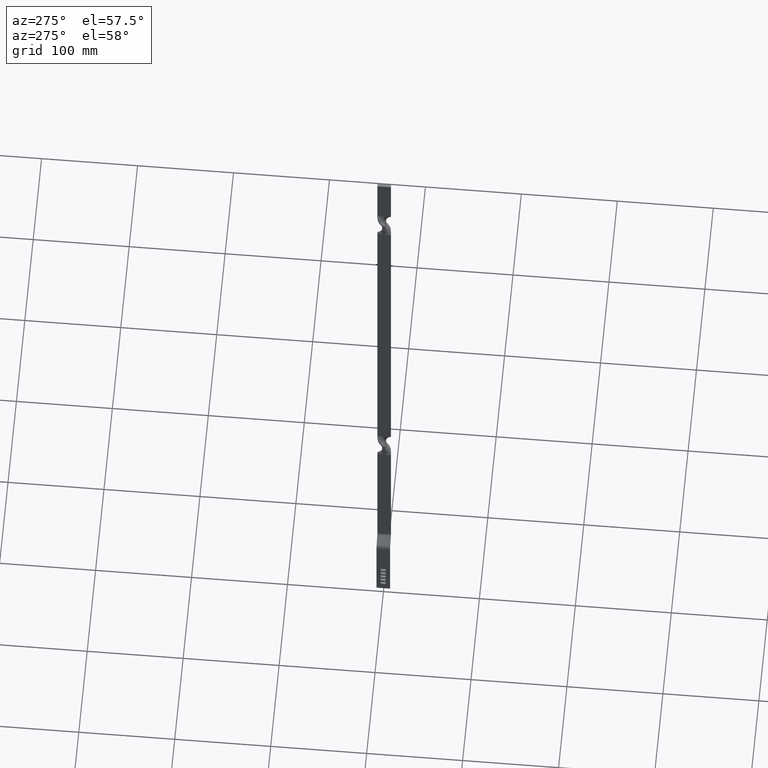
[diagram: clean part render]
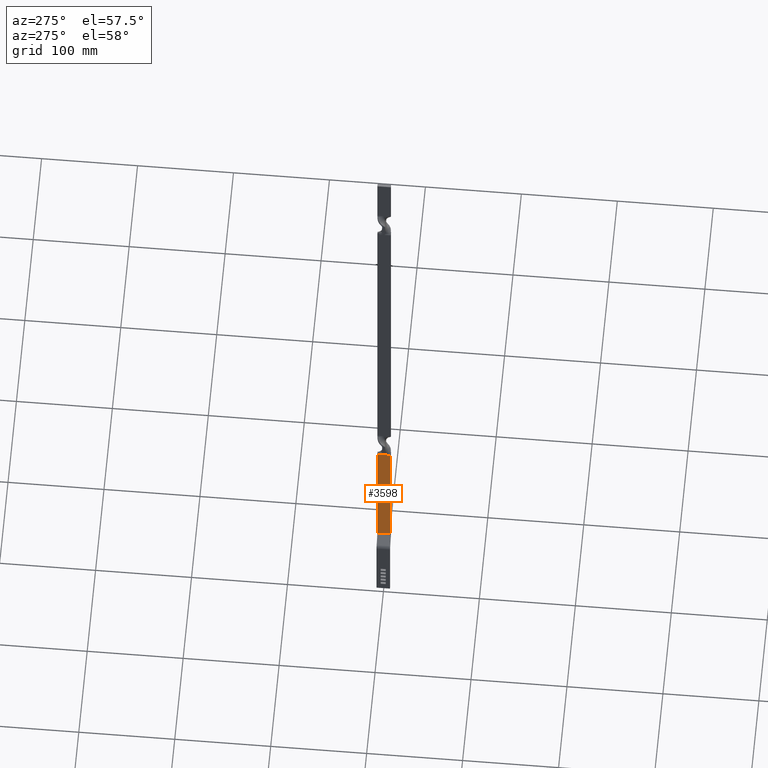
[diagram: same view with one face highlighted and labeled with its STEP entity id]
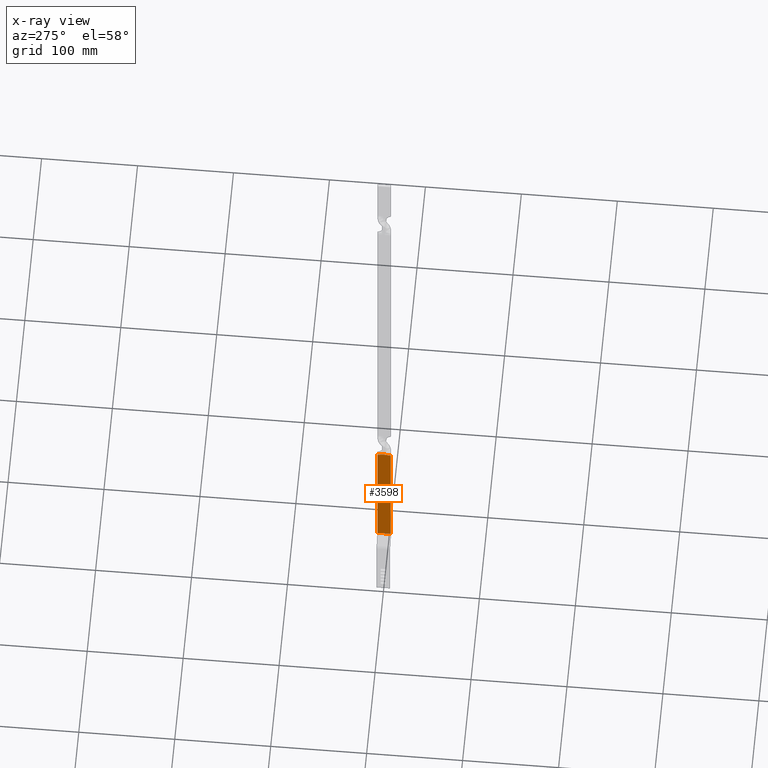
[diagram: x-ray of the same camera — body ghosted, the highlighted face saturated]
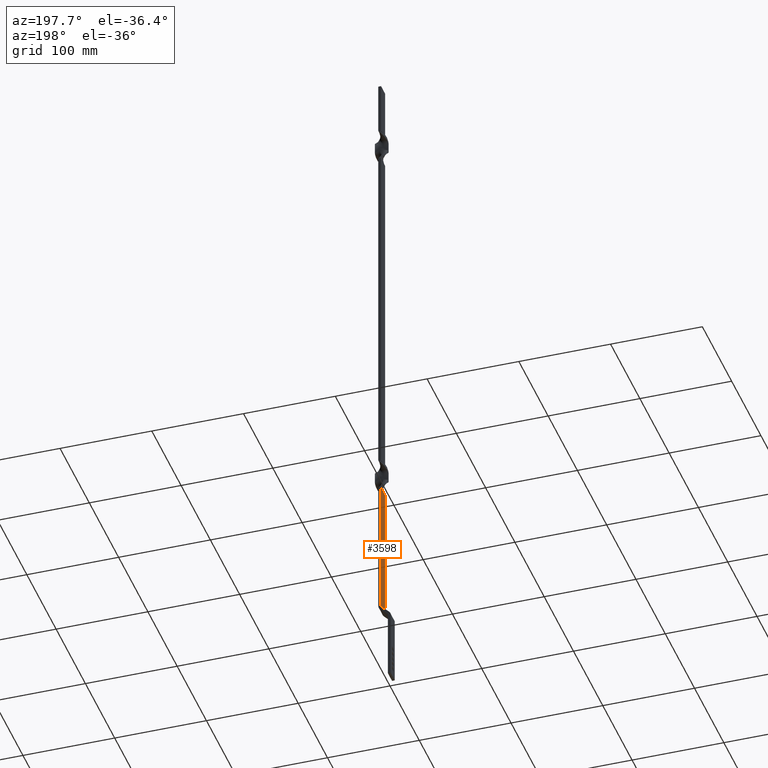
[diagram: same view with one face highlighted and labeled with its STEP entity id]
A machine part, auxiliary view. The second image highlights one B-rep face of the part: STEP entity #3598.
The next image is the same camera in x-ray: the body ghosted, the highlighted face saturated — about 0% of this face is hidden behind the body in this view.
A second angle (auxiliary view) of the same face is appended — the face is thin or edge-on in the first view.
In plain terms, the highlighted face is a freeform B-spline surface patch.
Its self-contained STEP definition (entity closure, byte-faithful):
#1369=CARTESIAN_POINT('',(7.499999999975329,0.271775746040648,231.499999864592010));
#1370=VERTEX_POINT('',#1369);
#1401=CARTESIAN_POINT('',(7.499999999975340,-6.999999999999901,230.289823060112010));
#1402=VERTEX_POINT('',#1401);
#1403=CARTESIAN_POINT('',(7.499999999975340,-6.999999999999901,230.289823060112010));
#1404=CARTESIAN_POINT('',(7.499999999975338,-6.389812878324831,230.363019088054500));
#1405=CARTESIAN_POINT('',(7.499999999975343,-5.780642736340854,230.443213533533990));
#1406=CARTESIAN_POINT('',(7.499999999975339,-4.564574697635062,230.619239040671000));
#1407=CARTESIAN_POINT('',(7.499999999975342,-3.957689163754508,230.715155178093600));
#1408=CARTESIAN_POINT('',(7.499999999975339,-2.746067614053558,230.921779513212500));
#1409=CARTESIAN_POINT('',(7.499999999975325,-2.141573673938101,231.032512532909210));
#1410=CARTESIAN_POINT('',(7.499999999975323,-0.934187228391457,231.262608756819790));
#1411=CARTESIAN_POINT('',(7.499999999975330,-0.331125421143054,231.381840310896110));
#1412=CARTESIAN_POINT('',(7.499999999975329,0.271775746040648,231.499999864592010));
#1413=B_SPLINE_CURVE_WITH_KNOTS('',3,(#1403,#1404,#1405,#1406,#1407,#1408,#1409,#1410,#1411,#1412),.UNSPECIFIED.,.F.,.U.,(4,2,2,2,4),(0.0,0.250000000000000,0.500000000000000,0.750000000000000,1.0),.UNSPECIFIED.);
#1414=EDGE_CURVE('',#1402,#1370,#1413,.T.);
#1479=CARTESIAN_POINT('',(7.499999999975340,7.0,230.313138716525490));
#1480=VERTEX_POINT('',#1479);
#1494=CARTESIAN_POINT('',(7.499999999975329,0.271775746040648,231.499999864592010));
#1495=CARTESIAN_POINT('',(7.499999999975331,0.828537851319427,231.380513618770410));
#1496=CARTESIAN_POINT('',(7.499999999975297,1.385487364079115,231.259859835024290));
#1497=CARTESIAN_POINT('',(7.499999999975299,2.501421362213027,231.030177948733210));
#1498=CARTESIAN_POINT('',(7.499999999975285,3.060560236040781,230.921247942993290));
#1499=CARTESIAN_POINT('',(7.499999999975286,4.182009287864624,230.720279087431610));
#1500=CARTESIAN_POINT('',(7.499999999975435,4.743986133300671,230.628099401617990));
#1501=CARTESIAN_POINT('',(7.499999999975439,5.870319582463210,230.459521368671800));
#1502=CARTESIAN_POINT('',(7.499999999975339,6.434663200717764,230.383036908537090));
#1503=CARTESIAN_POINT('',(7.499999999975340,7.0,230.313138716525490));
#1504=B_SPLINE_CURVE_WITH_KNOTS('',3,(#1494,#1495,#1496,#1497,#1498,#1499,#1500,#1501,#1502,#1503),.UNSPECIFIED.,.F.,.U.,(4,2,2,2,4),(0.0,0.250000000000000,0.500000000000000,0.750000000000000,1.0),.UNSPECIFIED.);
#1505=EDGE_CURVE('',#1370,#1480,#1504,.T.);
#1840=CARTESIAN_POINT('',(7.499999999976130,7.0,79.227923785452603));
#1841=VERTEX_POINT('',#1840);
#1862=CARTESIAN_POINT('',(7.499999999976130,-6.999999999999901,79.227923785452603));
#1863=VERTEX_POINT('',#1862);
#1877=CARTESIAN_POINT('',(7.499999999976130,7.0,79.227923785452603));
#1878=CARTESIAN_POINT('',(7.499999999976130,-6.999999999999901,79.227923785452603));
#1879=QUASI_UNIFORM_CURVE('',1,(#1877,#1878),.UNSPECIFIED.,.F.,.U.);
#1880=EDGE_CURVE('',#1841,#1863,#1879,.T.);
#3460=CARTESIAN_POINT('',(7.499999999976130,-6.999999999999901,79.227923785452603));
#3461=CARTESIAN_POINT('',(7.499999999975340,-6.999999999999901,230.289823060112010));
#3462=QUASI_UNIFORM_CURVE('',1,(#3460,#3461),.UNSPECIFIED.,.F.,.U.);
#3463=EDGE_CURVE('',#1863,#1402,#3462,.T.);
#3552=CARTESIAN_POINT('',(7.499999999976130,7.0,79.227923785452603));
#3553=CARTESIAN_POINT('',(7.499999999975340,7.0,230.313138716525490));
#3554=QUASI_UNIFORM_CURVE('',1,(#3552,#3553),.UNSPECIFIED.,.F.,.U.);
#3555=EDGE_CURVE('',#1841,#1480,#3554,.T.);
#3586=CARTESIAN_POINT('',(7.499999999976130,-7.699299972865179,239.105989769612190));
#3587=CARTESIAN_POINT('',(7.499999999976130,-7.699299972865179,71.621929796177071));
#3588=CARTESIAN_POINT('',(7.499999999976130,7.699300348374541,239.105989769612190));
#3589=CARTESIAN_POINT('',(7.499999999976130,7.699300348374541,71.621929796177071));
#3590=B_SPLINE_SURFACE_WITH_KNOTS('',1,1,((#3586,#3588),(#3587,#3589)),.UNSPECIFIED.,.F.,.F.,.U.,(2,2),(2,2),(0.0,167.484059973435110),(0.0,15.398600321239719),.UNSPECIFIED.);
#3591=ORIENTED_EDGE('',*,*,#3463,.T.);
#3592=ORIENTED_EDGE('',*,*,#1414,.T.);
#3593=ORIENTED_EDGE('',*,*,#1505,.T.);
#3594=ORIENTED_EDGE('',*,*,#3555,.F.);
#3595=ORIENTED_EDGE('',*,*,#1880,.T.);
#3596=EDGE_LOOP('',(#3591,#3592,#3593,#3594,#3595));
#3597=FACE_OUTER_BOUND('',#3596,.T.);
#3598=ADVANCED_FACE('',(#3597),#3590,.F.);